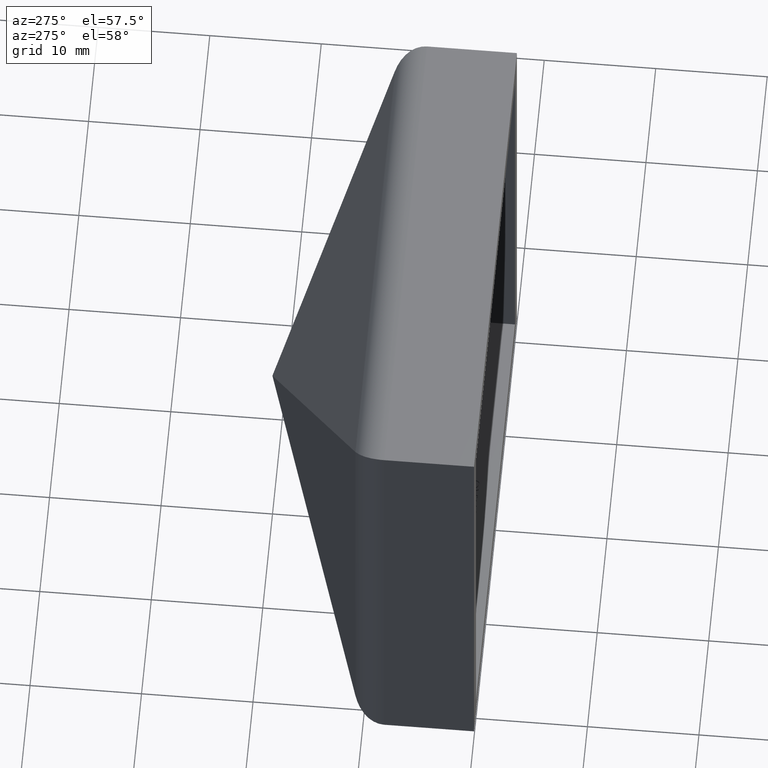
[diagram: clean part render]
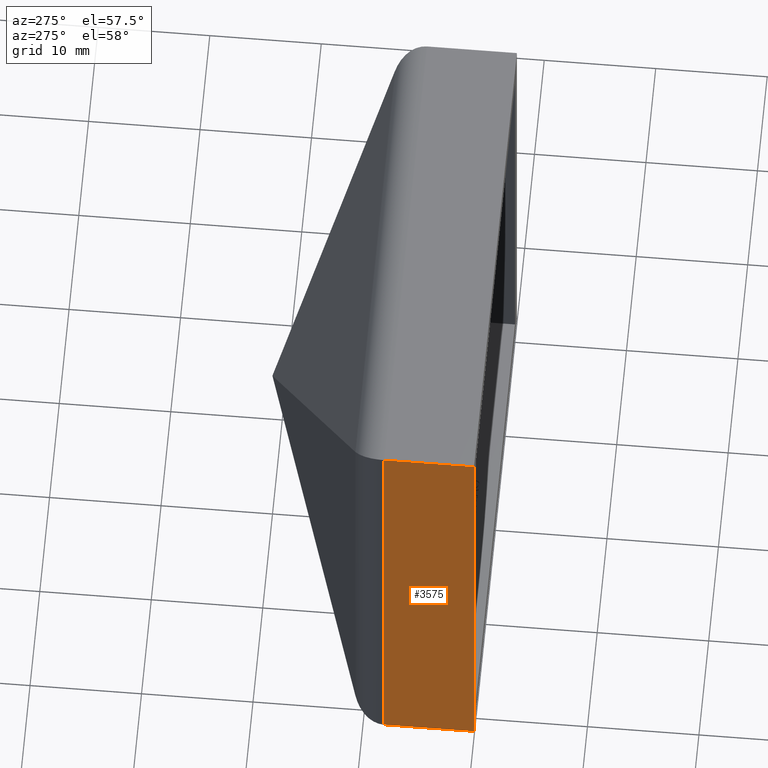
[diagram: same view with one face highlighted and labeled with its STEP entity id]
A machine part, auxiliary view. The second image highlights one B-rep face of the part: STEP entity #3575.
In plain terms, the highlighted planar face has unit normal (1, 0, -0).
Its self-contained STEP definition (entity closure, byte-faithful):
#199 = EDGE_CURVE ( 'NONE', #1999, #8340, #11170, .T. ) ;
#650 = CARTESIAN_POINT ( 'NONE',  ( -22.00000000000000000, 25.00000000000000000, 22.00000000000000000 ) ) ;
#1999 = VERTEX_POINT ( 'NONE', #3172 ) ;
#2044 = CARTESIAN_POINT ( 'NONE',  ( -22.00000000000000700, 0.0000000000000000000, -22.00000000000000000 ) ) ;
#2286 = EDGE_CURVE ( 'NONE', #4485, #7060, #5765, .T. ) ;
#2295 = DIRECTION ( 'NONE',  ( -0.0000000000000000000, -0.0000000000000000000, 1.000000000000000000 ) ) ;
#2854 = EDGE_CURVE ( 'NONE', #1999, #4485, #8666, .T. ) ;
#2935 = DIRECTION ( 'NONE',  ( 1.577021341797097600E-016, 0.0000000000000000000, 1.000000000000000000 ) ) ;
#3045 = DIRECTION ( 'NONE',  ( 1.000000000000000000, 0.0000000000000000000, -1.577021341797097600E-016 ) ) ;
#3172 = CARTESIAN_POINT ( 'NONE',  ( -22.00000000000002500, 8.069048484575164400, -21.99999999999998900 ) ) ;
#3575 = ADVANCED_FACE ( 'NONE', ( #6033 ), #7964, .F. ) ;
#4485 = VERTEX_POINT ( 'NONE', #2044 ) ;
#4575 = CARTESIAN_POINT ( 'NONE',  ( -22.00000000000000000, 0.0000000000000000000, 22.00000000000000000 ) ) ;
#4927 = CARTESIAN_POINT ( 'NONE',  ( -22.00000000000002100, 8.069048484575164400, 22.00000000000001400 ) ) ;
#5138 = CARTESIAN_POINT ( 'NONE',  ( -22.00000000000000700, 25.00000000000000000, -22.00000000000000000 ) ) ;
#5437 = VECTOR ( 'NONE', #2935, 1000.000000000000000 ) ;
#5765 = LINE ( 'NONE', #7814, #5437 ) ;
#5819 = CARTESIAN_POINT ( 'NONE',  ( -22.00000000000000700, 25.00000000000000000, -22.00000000000000000 ) ) ;
#6033 = FACE_OUTER_BOUND ( 'NONE', #6102, .T. ) ;
#6102 = EDGE_LOOP ( 'NONE', ( #7392, #12672, #11051, #6424 ) ) ;
#6424 = ORIENTED_EDGE ( 'NONE', *, *, #2286, .T. ) ;
#6617 = AXIS2_PLACEMENT_3D ( 'NONE', #5138, #3045, #11999 ) ;
#7060 = VERTEX_POINT ( 'NONE', #4575 ) ;
#7392 = ORIENTED_EDGE ( 'NONE', *, *, #9693, .F. ) ;
#7814 = CARTESIAN_POINT ( 'NONE',  ( -22.00000000000000700, 0.0000000000000000000, -22.00000000000000000 ) ) ;
#7964 = PLANE ( 'NONE',  #6617 ) ;
#8340 = VERTEX_POINT ( 'NONE', #4927 ) ;
#8460 = DIRECTION ( 'NONE',  ( -0.0000000000000000000, -1.000000000000000000, -0.0000000000000000000 ) ) ;
#8666 = LINE ( 'NONE', #5819, #8988 ) ;
#8988 = VECTOR ( 'NONE', #9122, 1000.000000000000000 ) ;
#9122 = DIRECTION ( 'NONE',  ( -0.0000000000000000000, -1.000000000000000000, -0.0000000000000000000 ) ) ;
#9693 = EDGE_CURVE ( 'NONE', #8340, #7060, #10489, .T. ) ;
#10489 = LINE ( 'NONE', #650, #12001 ) ;
#11023 = VECTOR ( 'NONE', #2295, 1000.000000000000000 ) ;
#11051 = ORIENTED_EDGE ( 'NONE', *, *, #2854, .T. ) ;
#11170 = LINE ( 'NONE', #12126, #11023 ) ;
#11999 = DIRECTION ( 'NONE',  ( -1.577021341797097600E-016, 0.0000000000000000000, -1.000000000000000000 ) ) ;
#12001 = VECTOR ( 'NONE', #8460, 1000.000000000000000 ) ;
#12126 = CARTESIAN_POINT ( 'NONE',  ( -22.00000000000000000, 8.069048484575164400, -22.00000000000000000 ) ) ;
#12672 = ORIENTED_EDGE ( 'NONE', *, *, #199, .F. ) ;